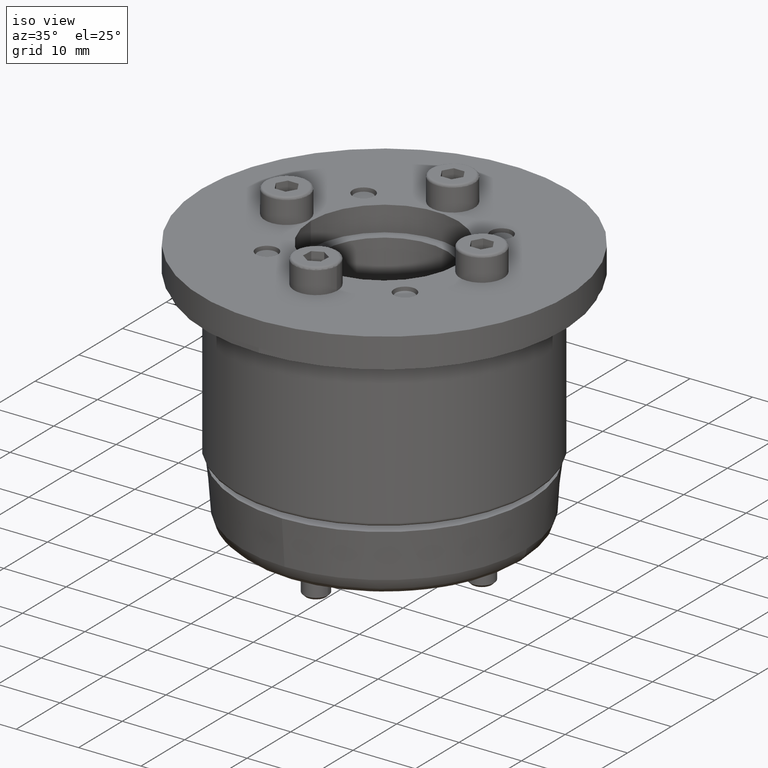
[diagram: clean part render]
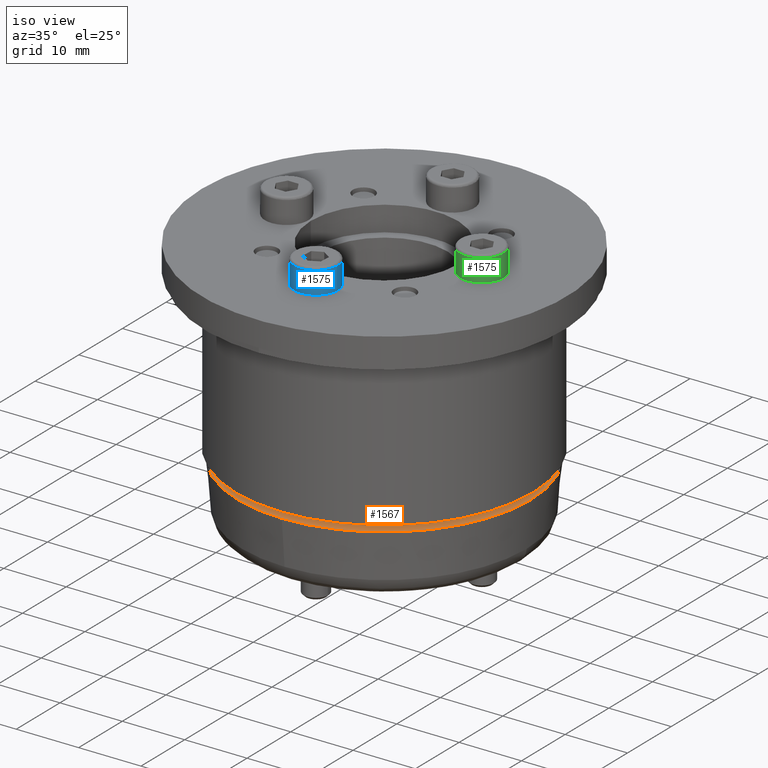
[diagram: same view with three faces highlighted in distinct colors, each labeled with its STEP entity id]
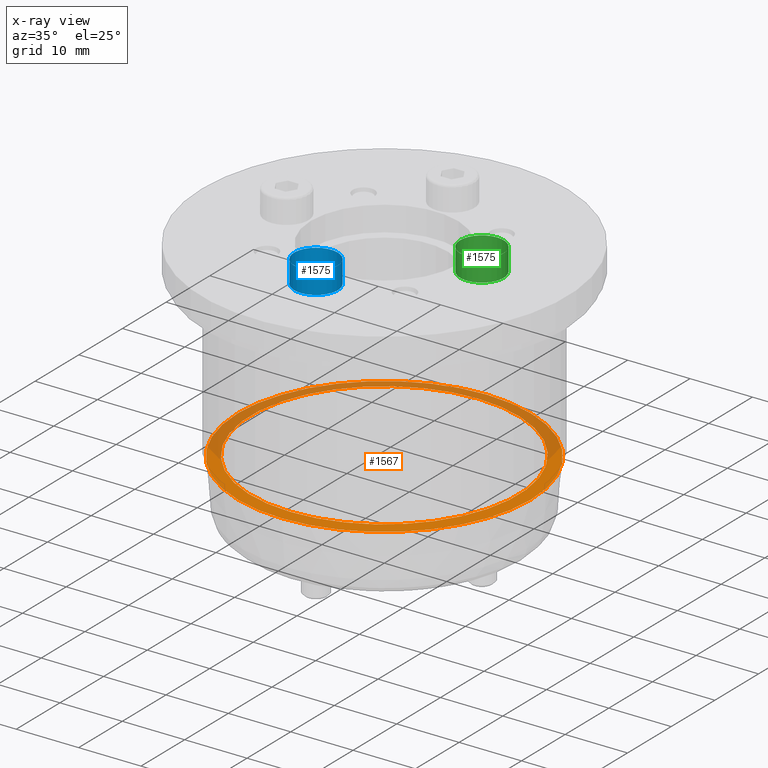
[diagram: x-ray of the same camera — body ghosted, the three highlighted faces saturated]
A machine part, iso view with three faces highlighted in distinct colors.
The next image is the same camera in x-ray (body ghosted, the three faces saturated) — at least one of them is partly hidden behind the body in this view.
Their STEP definitions:

[orange] entity #1567 — the highlighted conical surface has half-angle 85 deg.
#214=LINE('',#2878,#276);
#276=VECTOR('',#2401,22.4719939874387);
#304=CONICAL_SURFACE('',#1900,22.4719939874387,1.48352986419518);
#374=FACE_OUTER_BOUND('',#501,.T.);
#501=EDGE_LOOP('',(#1398,#1399,#1400,#1401,#1402,#1403));
#632=CIRCLE('',#1871,21.475799289347);
#633=CIRCLE('',#1872,21.475799289347);
#650=CIRCLE('',#1893,23.4681886855305);
#651=CIRCLE('',#1894,23.4681886855305);
#775=VERTEX_POINT('',#2822);
#776=VERTEX_POINT('',#2823);
#792=VERTEX_POINT('',#2862);
#793=VERTEX_POINT('',#2863);
#976=EDGE_CURVE('',#775,#776,#632,.T.);
#978=EDGE_CURVE('',#776,#775,#633,.T.);
#995=EDGE_CURVE('',#792,#793,#650,.T.);
#996=EDGE_CURVE('',#793,#792,#651,.T.);
#1003=EDGE_CURVE('',#776,#793,#214,.T.);
#1398=ORIENTED_EDGE('',*,*,#976,.F.);
#1399=ORIENTED_EDGE('',*,*,#978,.F.);
#1400=ORIENTED_EDGE('',*,*,#1003,.T.);
#1401=ORIENTED_EDGE('',*,*,#996,.T.);
#1402=ORIENTED_EDGE('',*,*,#995,.T.);
#1403=ORIENTED_EDGE('',*,*,#1003,.F.);
#1567=ADVANCED_FACE('',(#374),#304,.T.);
#1871=AXIS2_PLACEMENT_3D('',#2824,#2334,#2335);
#1872=AXIS2_PLACEMENT_3D('',#2826,#2337,#2338);
#1893=AXIS2_PLACEMENT_3D('',#2864,#2379,#2380);
#1894=AXIS2_PLACEMENT_3D('',#2865,#2381,#2382);
#1900=AXIS2_PLACEMENT_3D('',#2877,#2399,#2400);
#2334=DIRECTION('center_axis',(0.,1.,0.));
#2335=DIRECTION('ref_axis',(-1.,0.,0.));
#2337=DIRECTION('center_axis',(0.,1.,0.));
#2338=DIRECTION('ref_axis',(-1.,0.,0.));
#2379=DIRECTION('center_axis',(0.,1.,0.));
#2380=DIRECTION('ref_axis',(-1.,0.,0.));
#2381=DIRECTION('center_axis',(0.,1.,0.));
#2382=DIRECTION('ref_axis',(-1.,0.,0.));
#2399=DIRECTION('center_axis',(0.,-1.,0.));
#2400=DIRECTION('ref_axis',(-1.,0.,0.));
#2401=DIRECTION('',(0.996194698091746,-0.0871557427476584,-1.21998664834562E-16));
#2822=CARTESIAN_POINT('',(-52.675799289347,8.17,0.));
#2823=CARTESIAN_POINT('',(-9.72420071065302,8.17,-2.63002688588298E-15));
#2824=CARTESIAN_POINT('Origin',(-31.2,8.17,0.));
#2826=CARTESIAN_POINT('Origin',(-31.2,8.17,0.));
#2862=CARTESIAN_POINT('',(-54.6681886855304,7.99568851450469,0.));
#2863=CARTESIAN_POINT('',(-7.73181131446953,7.99568851450469,-2.8740242155521E-15));
#2864=CARTESIAN_POINT('Origin',(-31.2,7.99568851450469,0.));
#2865=CARTESIAN_POINT('Origin',(-31.2,7.99568851450469,0.));
#2877=CARTESIAN_POINT('Origin',(-31.2,8.08284425725234,0.));
#2878=CARTESIAN_POINT('',(-8.72800601256127,8.08284425725234,-2.75202555071754E-15));

[blue] entity #1575 — the highlighted cylindrical surface (bore or boss wall) has radius 3.5 mm, axis along (0, -0, -1).
#101=CYLINDRICAL_SURFACE('',#1928,3.5);
#223=LINE('',#2938,#285);
#285=VECTOR('',#2466,3.5);
#382=FACE_OUTER_BOUND('',#511,.T.);
#511=EDGE_LOOP('',(#1447,#1448,#1449,#1450,#1451,#1452,#1453));
#663=CIRCLE('',#1918,3.5);
#664=CIRCLE('',#1919,3.5);
#665=CIRCLE('',#1921,3.5);
#666=CIRCLE('',#1922,3.5);
#670=CIRCLE('',#1926,3.5);
#804=VERTEX_POINT('',#2908);
#805=VERTEX_POINT('',#2909);
#806=VERTEX_POINT('',#2913);
#807=VERTEX_POINT('',#2914);
#808=VERTEX_POINT('',#2916);
#1017=EDGE_CURVE('',#804,#805,#663,.T.);
#1018=EDGE_CURVE('',#805,#804,#664,.T.);
#1019=EDGE_CURVE('',#806,#807,#665,.T.);
#1020=EDGE_CURVE('',#807,#808,#666,.T.);
#1024=EDGE_CURVE('',#808,#806,#670,.T.);
#1031=EDGE_CURVE('',#805,#807,#223,.T.);
#1447=ORIENTED_EDGE('',*,*,#1017,.F.);
#1448=ORIENTED_EDGE('',*,*,#1018,.F.);
#1449=ORIENTED_EDGE('',*,*,#1031,.T.);
#1450=ORIENTED_EDGE('',*,*,#1019,.F.);
#1451=ORIENTED_EDGE('',*,*,#1024,.F.);
#1452=ORIENTED_EDGE('',*,*,#1020,.F.);
#1453=ORIENTED_EDGE('',*,*,#1031,.F.);
#1575=ADVANCED_FACE('',(#382),#101,.T.);
#1918=AXIS2_PLACEMENT_3D('',#2910,#2438,#2439);
#1919=AXIS2_PLACEMENT_3D('',#2911,#2440,#2441);
#1921=AXIS2_PLACEMENT_3D('',#2915,#2444,#2445);
#1922=AXIS2_PLACEMENT_3D('',#2917,#2446,#2447);
#1926=AXIS2_PLACEMENT_3D('',#2923,#2454,#2455);
#1928=AXIS2_PLACEMENT_3D('',#2937,#2464,#2465);
#2438=DIRECTION('center_axis',(1.,2.93835360817607E-18,0.));
#2439=DIRECTION('ref_axis',(0.,1.,0.));
#2440=DIRECTION('center_axis',(1.,2.93835360817607E-18,0.));
#2441=DIRECTION('ref_axis',(0.,1.,0.));
#2444=DIRECTION('center_axis',(-1.,-2.93835360817607E-18,0.));
#2445=DIRECTION('ref_axis',(0.,-1.,1.22464679914735E-16));
#2446=DIRECTION('center_axis',(-1.,-2.93835360817607E-18,0.));
#2447=DIRECTION('ref_axis',(0.,-1.,1.22464679914735E-16));
#2454=DIRECTION('center_axis',(-1.,-2.93835360817607E-18,0.));
#2455=DIRECTION('ref_axis',(0.,-1.,1.22464679914735E-16));
#2464=DIRECTION('center_axis',(1.,2.93835360817607E-18,0.));
#2465=DIRECTION('ref_axis',(0.,1.,0.));
#2466=DIRECTION('',(-1.,-2.93835360817607E-18,0.));
#2908=CARTESIAN_POINT('',(2.22044604925031E-15,3.5,0.));
#2909=CARTESIAN_POINT('',(0.,-3.5,-4.28626379701574E-16));
#2910=CARTESIAN_POINT('Origin',(0.,-1.17534144327043E-16,0.));
#2911=CARTESIAN_POINT('Origin',(0.,-1.17534144327043E-16,0.));
#2913=CARTESIAN_POINT('',(-3.59999999999999,3.5,-8.57252759403148E-16));
#2914=CARTESIAN_POINT('',(-3.59999999999999,-3.5,-4.28626379701574E-16));
#2915=CARTESIAN_POINT('Origin',(-3.59999999999999,-1.28112217316477E-16,
0.));
#2916=CARTESIAN_POINT('',(-3.59999999999999,-5.5673859701805E-16,3.5));
#2917=CARTESIAN_POINT('Origin',(-3.59999999999999,-1.28112217316477E-16,
0.));
#2923=CARTESIAN_POINT('Origin',(-3.59999999999999,-1.28112217316477E-16,
0.));
#2937=CARTESIAN_POINT('Origin',(-1.99999999999999,-1.23410851543395E-16,
0.));
#2938=CARTESIAN_POINT('',(-1.99999999999999,-3.5,-4.28626379701574E-16));

[green] entity #1575 — the highlighted cylindrical surface (bore or boss wall) has radius 3.5 mm, axis along (0, -0, -1).
#101=CYLINDRICAL_SURFACE('',#1928,3.5);
#223=LINE('',#2938,#285);
#285=VECTOR('',#2466,3.5);
#382=FACE_OUTER_BOUND('',#511,.T.);
#511=EDGE_LOOP('',(#1447,#1448,#1449,#1450,#1451,#1452,#1453));
#663=CIRCLE('',#1918,3.5);
#664=CIRCLE('',#1919,3.5);
#665=CIRCLE('',#1921,3.5);
#666=CIRCLE('',#1922,3.5);
#670=CIRCLE('',#1926,3.5);
#804=VERTEX_POINT('',#2908);
#805=VERTEX_POINT('',#2909);
#806=VERTEX_POINT('',#2913);
#807=VERTEX_POINT('',#2914);
#808=VERTEX_POINT('',#2916);
#1017=EDGE_CURVE('',#804,#805,#663,.T.);
#1018=EDGE_CURVE('',#805,#804,#664,.T.);
#1019=EDGE_CURVE('',#806,#807,#665,.T.);
#1020=EDGE_CURVE('',#807,#808,#666,.T.);
#1024=EDGE_CURVE('',#808,#806,#670,.T.);
#1031=EDGE_CURVE('',#805,#807,#223,.T.);
#1447=ORIENTED_EDGE('',*,*,#1017,.F.);
#1448=ORIENTED_EDGE('',*,*,#1018,.F.);
#1449=ORIENTED_EDGE('',*,*,#1031,.T.);
#1450=ORIENTED_EDGE('',*,*,#1019,.F.);
#1451=ORIENTED_EDGE('',*,*,#1024,.F.);
#1452=ORIENTED_EDGE('',*,*,#1020,.F.);
#1453=ORIENTED_EDGE('',*,*,#1031,.F.);
#1575=ADVANCED_FACE('',(#382),#101,.T.);
#1918=AXIS2_PLACEMENT_3D('',#2910,#2438,#2439);
#1919=AXIS2_PLACEMENT_3D('',#2911,#2440,#2441);
#1921=AXIS2_PLACEMENT_3D('',#2915,#2444,#2445);
#1922=AXIS2_PLACEMENT_3D('',#2917,#2446,#2447);
#1926=AXIS2_PLACEMENT_3D('',#2923,#2454,#2455);
#1928=AXIS2_PLACEMENT_3D('',#2937,#2464,#2465);
#2438=DIRECTION('center_axis',(1.,2.93835360817607E-18,0.));
#2439=DIRECTION('ref_axis',(0.,1.,0.));
#2440=DIRECTION('center_axis',(1.,2.93835360817607E-18,0.));
#2441=DIRECTION('ref_axis',(0.,1.,0.));
#2444=DIRECTION('center_axis',(-1.,-2.93835360817607E-18,0.));
#2445=DIRECTION('ref_axis',(0.,-1.,1.22464679914735E-16));
#2446=DIRECTION('center_axis',(-1.,-2.93835360817607E-18,0.));
#2447=DIRECTION('ref_axis',(0.,-1.,1.22464679914735E-16));
#2454=DIRECTION('center_axis',(-1.,-2.93835360817607E-18,0.));
#2455=DIRECTION('ref_axis',(0.,-1.,1.22464679914735E-16));
#2464=DIRECTION('center_axis',(1.,2.93835360817607E-18,0.));
#2465=DIRECTION('ref_axis',(0.,1.,0.));
#2466=DIRECTION('',(-1.,-2.93835360817607E-18,0.));
#2908=CARTESIAN_POINT('',(2.22044604925031E-15,3.5,0.));
#2909=CARTESIAN_POINT('',(0.,-3.5,-4.28626379701574E-16));
#2910=CARTESIAN_POINT('Origin',(0.,-1.17534144327043E-16,0.));
#2911=CARTESIAN_POINT('Origin',(0.,-1.17534144327043E-16,0.));
#2913=CARTESIAN_POINT('',(-3.59999999999999,3.5,-8.57252759403148E-16));
#2914=CARTESIAN_POINT('',(-3.59999999999999,-3.5,-4.28626379701574E-16));
#2915=CARTESIAN_POINT('Origin',(-3.59999999999999,-1.28112217316477E-16,
0.));
#2916=CARTESIAN_POINT('',(-3.59999999999999,-5.5673859701805E-16,3.5));
#2917=CARTESIAN_POINT('Origin',(-3.59999999999999,-1.28112217316477E-16,
0.));
#2923=CARTESIAN_POINT('Origin',(-3.59999999999999,-1.28112217316477E-16,
0.));
#2937=CARTESIAN_POINT('Origin',(-1.99999999999999,-1.23410851543395E-16,
0.));
#2938=CARTESIAN_POINT('',(-1.99999999999999,-3.5,-4.28626379701574E-16));